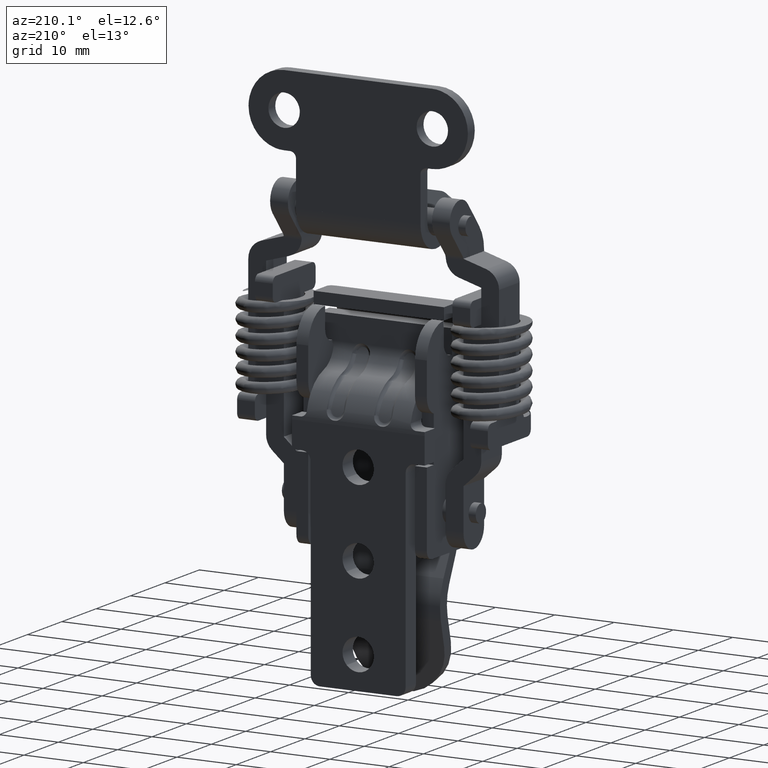
[diagram: clean part render]
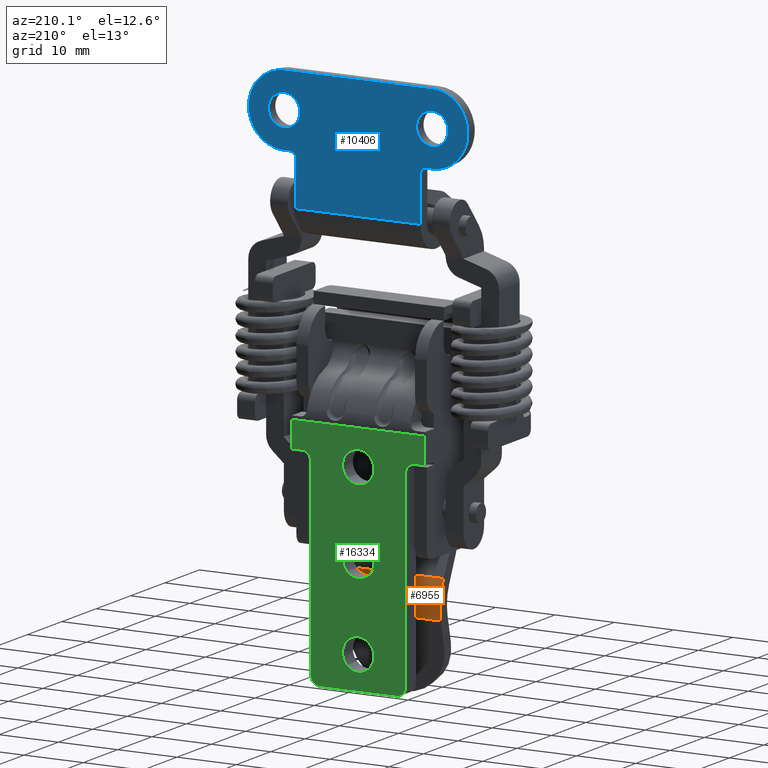
[diagram: same view with three faces highlighted in distinct colors, each labeled with its STEP entity id]
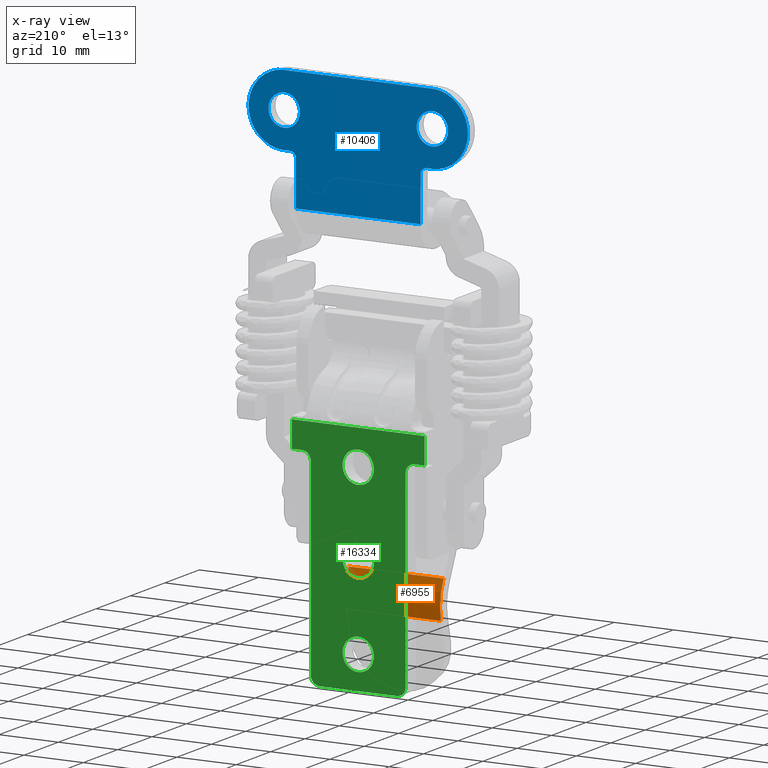
[diagram: x-ray of the same camera — body ghosted, the three highlighted faces saturated]
A machine part, auxiliary view with three faces highlighted in distinct colors.
The next image is the same camera in x-ray (body ghosted, the three faces saturated) — at least one of them is partly hidden behind the body in this view.
Their STEP definitions:

[orange] entity #6955 — the highlighted face is a freeform B-spline surface patch.
#6782=CARTESIAN_POINT('',(-5.740000047387080,8.0,-61.066000200965298));
#6783=VERTEX_POINT('',#6782);
#6817=CARTESIAN_POINT('',(-6.501592760650630,8.0,-54.873805429512302));
#6818=VERTEX_POINT('',#6817);
#6824=CARTESIAN_POINT('',(-5.740000047387080,8.0,-61.066000200965298));
#6825=CARTESIAN_POINT('',(-5.564607512669956,8.000000000000012,-60.323197919023933));
#6826=CARTESIAN_POINT('',(-5.443017026830600,7.999999999999992,-59.158759364252262));
#6827=CARTESIAN_POINT('',(-5.576390811041921,8.000000000000014,-57.668200340374867));
#6828=CARTESIAN_POINT('',(-5.861551995298243,7.999999999999981,-56.335806363307562));
#6829=CARTESIAN_POINT('',(-6.212416716020614,8.000000000000027,-55.434055913241657));
#6830=CARTESIAN_POINT('',(-6.501592760650630,8.0,-54.873805429512302));
#6831=B_SPLINE_CURVE_WITH_KNOTS('',3,(#6824,#6825,#6826,#6827,#6828,#6829,#6830),.UNSPECIFIED.,.F.,.U.,(4,1,1,1,4),(0.000000012861750,2.289614126566698,3.484170526421149,4.479665208323163,6.371079917729849),.UNSPECIFIED.);
#6832=EDGE_CURVE('',#6783,#6818,#6831,.T.);
#6850=CARTESIAN_POINT('',(-5.740000047387080,-7.999900000000001,-61.066000200965298));
#6851=VERTEX_POINT('',#6850);
#6857=CARTESIAN_POINT('',(-6.501592760650630,-7.999900000000001,-54.873805429512302));
#6858=VERTEX_POINT('',#6857);
#6859=CARTESIAN_POINT('',(-5.740000047387080,-7.999900000000001,-61.066000200965298));
#6860=CARTESIAN_POINT('',(-5.564607512669953,-7.999900000000014,-60.323197919023947));
#6861=CARTESIAN_POINT('',(-5.443017026830606,-7.999899999999995,-59.158759364252290));
#6862=CARTESIAN_POINT('',(-5.576390811041919,-7.999900000000019,-57.668200340374860));
#6863=CARTESIAN_POINT('',(-5.861551995298244,-7.999899999999978,-56.335806363307583));
#6864=CARTESIAN_POINT('',(-6.212416716020613,-7.999900000000024,-55.434055913241622));
#6865=CARTESIAN_POINT('',(-6.501592760650630,-7.999900000000001,-54.873805429512302));
#6866=B_SPLINE_CURVE_WITH_KNOTS('',3,(#6859,#6860,#6861,#6862,#6863,#6864,#6865),.UNSPECIFIED.,.F.,.U.,(4,1,1,1,4),(0.000000012861750,2.289614126566698,3.484170526421149,4.479665208323163,6.371079917729849),.UNSPECIFIED.);
#6867=EDGE_CURVE('',#6851,#6858,#6866,.T.);
#6922=CARTESIAN_POINT('',(-5.740000047387080,-7.999900000000001,-61.066000200965298));
#6923=CARTESIAN_POINT('',(-5.740000047387080,8.0,-61.066000200965298));
#6924=QUASI_UNIFORM_CURVE('',1,(#6922,#6923),.UNSPECIFIED.,.F.,.U.);
#6925=EDGE_CURVE('',#6851,#6783,#6924,.T.);
#6931=CARTESIAN_POINT('',(-5.814983309856343,-8.399897500000002,-61.361501050628178));
#6932=CARTESIAN_POINT('',(-5.814983309856343,8.409997437500001,-61.361501050628178));
#6933=CARTESIAN_POINT('',(-4.849396144398342,-8.399897500000002,-57.809688624432184));
#6934=CARTESIAN_POINT('',(-4.849396144398342,8.409997437500001,-57.809688624432184));
#6935=CARTESIAN_POINT('',(-6.649396163105486,-8.399897500000002,-54.599123250914353));
#6936=CARTESIAN_POINT('',(-6.649396163105486,8.409997437500000,-54.599123250914353));
#6944=(BOUNDED_SURFACE()B_SPLINE_SURFACE(1,2,((#6931,#6933,#6935),(#6932,#6934,#6936)),.UNSPECIFIED.,.F.,.F.,.U.)B_SPLINE_SURFACE_WITH_KNOTS((2,2),(3,3),(0.0,16.809894937500012),(0.0,7.076936884566305),.UNSPECIFIED.)GEOMETRIC_REPRESENTATION_ITEM()RATIONAL_B_SPLINE_SURFACE(((1.0,0.921603612356871,0.991410723810910),(1.0,0.921603612356871,0.991410723810910)))REPRESENTATION_ITEM('')SURFACE());
#6945=ORIENTED_EDGE('',*,*,#6832,.T.);
#6946=CARTESIAN_POINT('',(-6.501592760650630,-7.999900000000001,-54.873805429512302));
#6947=CARTESIAN_POINT('',(-6.501592760650630,8.0,-54.873805429512302));
#6948=QUASI_UNIFORM_CURVE('',1,(#6946,#6947),.UNSPECIFIED.,.F.,.U.);
#6949=EDGE_CURVE('',#6858,#6818,#6948,.T.);
#6950=ORIENTED_EDGE('',*,*,#6949,.F.);
#6951=ORIENTED_EDGE('',*,*,#6867,.F.);
#6952=ORIENTED_EDGE('',*,*,#6925,.T.);
#6953=EDGE_LOOP('',(#6945,#6950,#6951,#6952));
#6954=FACE_OUTER_BOUND('',#6953,.T.);
#6955=ADVANCED_FACE('',(#6954),#6944,.T.);

[blue] entity #10406 — the highlighted face is a freeform B-spline surface patch.
#9279=CARTESIAN_POINT('',(4.499999999999949,14.324139444820981,16.922241729165190));
#9280=VERTEX_POINT('',#9279);
#9286=CARTESIAN_POINT('',(4.499999999999949,12.500000000000000,17.649999999999999));
#9287=VERTEX_POINT('',#9286);
#9288=CARTESIAN_POINT('',(4.499999999999949,12.500000000000000,17.649999999999999));
#9289=CARTESIAN_POINT('',(4.499999999999951,12.730544245590110,17.650082412219550));
#9290=CARTESIAN_POINT('',(4.499999999999948,13.086772128391299,17.603181367212390));
#9291=CARTESIAN_POINT('',(4.499999999999954,13.722406734863389,17.383995055448949));
#9292=CARTESIAN_POINT('',(4.499999999999936,14.096258029613971,17.138863337034930));
#9293=CARTESIAN_POINT('',(4.499999999999949,14.324139444820981,16.922241729165190));
#9294=B_SPLINE_CURVE_WITH_KNOTS('',3,(#9288,#9289,#9290,#9291,#9292,#9293),.UNSPECIFIED.,.F.,.U.,(4,1,1,4),(0.000000013339782,0.691616771846324,1.068861656123942,2.011975440954431),.UNSPECIFIED.);
#9295=EDGE_CURVE('',#9287,#9280,#9294,.T.);
#9297=CARTESIAN_POINT('',(4.499999999999949,9.850000000000442,15.000001527001460));
#9298=VERTEX_POINT('',#9297);
#9299=CARTESIAN_POINT('',(4.499999999999949,9.850000000000442,15.000001527001460));
#9300=CARTESIAN_POINT('',(4.499999999999953,9.849856774500241,15.281860808402209));
#9301=CARTESIAN_POINT('',(4.499999999999942,9.937287119896761,15.823778187694691));
#9302=CARTESIAN_POINT('',(4.499999999999948,10.262419924937319,16.469804688013038));
#9303=CARTESIAN_POINT('',(4.499999999999959,10.660952612324291,16.931617415669390));
#9304=CARTESIAN_POINT('',(4.499999999999941,11.073117493497000,17.253276039472478));
#9305=CARTESIAN_POINT('',(4.499999999999953,11.676318300618391,17.557048825565939));
#9306=CARTESIAN_POINT('',(4.499999999999953,12.174754369222800,17.650247222138699));
#9307=CARTESIAN_POINT('',(4.499999999999949,12.500000000000000,17.649999999999999));
#9308=B_SPLINE_CURVE_WITH_KNOTS('',3,(#9299,#9300,#9301,#9302,#9303,#9304,#9305,#9306,#9307),.UNSPECIFIED.,.F.,.U.,(4,1,1,1,1,1,4),(0.000000052758711,0.845550204636312,1.626066688392250,2.146396051881279,2.666733828409806,3.187077940185549,4.162713861821691),.UNSPECIFIED.);
#9309=EDGE_CURVE('',#9298,#9287,#9308,.T.);
#9311=CARTESIAN_POINT('',(4.499999999999949,12.500000000000000,12.350000000000000));
#9312=VERTEX_POINT('',#9311);
#9313=CARTESIAN_POINT('',(4.499999999999949,12.500000000000000,12.350000000000000));
#9314=CARTESIAN_POINT('',(4.499999999999947,12.283204268178681,12.349971530993271));
#9315=CARTESIAN_POINT('',(4.499999999999954,11.784525009751180,12.411433976181179));
#9316=CARTESIAN_POINT('',(4.499999999999944,11.158929085598730,12.679556126838680));
#9317=CARTESIAN_POINT('',(4.499999999999952,10.660942558693201,13.068394333897130));
#9318=CARTESIAN_POINT('',(4.499999999999949,10.319428610826520,13.464268299864081));
#9319=CARTESIAN_POINT('',(4.499999999999949,10.072472555625030,13.900235696775271));
#9320=CARTESIAN_POINT('',(4.499999999999947,9.895488167455131,14.414657534886141));
#9321=CARTESIAN_POINT('',(4.499999999999964,9.849948446987238,14.783195150864319));
#9322=CARTESIAN_POINT('',(4.499999999999949,9.850000000000442,15.000001527001460));
#9323=B_SPLINE_CURVE_WITH_KNOTS('',3,(#9313,#9314,#9315,#9316,#9317,#9318,#9319,#9320,#9321,#9322),.UNSPECIFIED.,.F.,.U.,(4,1,1,1,1,1,1,4),(0.000000050669638,0.650420601499359,1.495980702797743,2.016318695154697,2.536648275005632,3.056994142481446,3.512295033035097,4.162715583151159),.UNSPECIFIED.);
#9324=EDGE_CURVE('',#9312,#9298,#9323,.T.);
#9326=CARTESIAN_POINT('',(4.499999999999949,14.523422809197790,13.288783435560690));
#9327=VERTEX_POINT('',#9326);
#9328=CARTESIAN_POINT('',(4.499999999999949,14.523422809197790,13.288783435560690));
#9329=CARTESIAN_POINT('',(4.499999999999955,14.384076084870729,13.123944732225960));
#9330=CARTESIAN_POINT('',(4.499999999999943,14.038228307134750,12.803970281019120));
#9331=CARTESIAN_POINT('',(4.499999999999956,13.351279986137699,12.444587625006090));
#9332=CARTESIAN_POINT('',(4.499999999999947,12.799807182600700,12.349811959283601));
#9333=CARTESIAN_POINT('',(4.499999999999949,12.500000000000000,12.350000000000000));
#9334=B_SPLINE_CURVE_WITH_KNOTS('',3,(#9328,#9329,#9330,#9331,#9332,#9333),.UNSPECIFIED.,.F.,.U.,(4,1,1,4),(0.000000039349580,0.647535170908107,1.402987454673651,2.302342246078862),.UNSPECIFIED.);
#9335=EDGE_CURVE('',#9327,#9312,#9334,.T.);
#9370=CARTESIAN_POINT('',(4.499999999999949,15.149999999999560,14.999998472998531));
#9371=VERTEX_POINT('',#9370);
#9372=CARTESIAN_POINT('',(4.499999999999949,15.149999999999560,14.999998472998531));
#9373=CARTESIAN_POINT('',(4.499999999999943,15.150050935541220,14.786835137579979));
#9374=CARTESIAN_POINT('',(4.499999999999956,15.105324552871251,14.418681939873300));
#9375=CARTESIAN_POINT('',(4.499999999999946,14.904179666322859,13.829580324324750));
#9376=CARTESIAN_POINT('',(4.499999999999949,14.686179716056859,13.481081100158489));
#9377=CARTESIAN_POINT('',(4.499999999999949,14.523422809197790,13.288783435560690));
#9378=B_SPLINE_CURVE_WITH_KNOTS('',3,(#9372,#9373,#9374,#9375,#9376,#9377),.UNSPECIFIED.,.F.,.U.,(4,1,1,4),(0.000000016642683,0.639490956680795,1.104559887451847,1.860321760689824),.UNSPECIFIED.);
#9379=EDGE_CURVE('',#9371,#9327,#9378,.T.);
#9381=CARTESIAN_POINT('',(4.499999999999949,14.324139444820981,16.922241729165190));
#9382=CARTESIAN_POINT('',(4.499999999999956,14.446025064108960,16.806591959475949));
#9383=CARTESIAN_POINT('',(4.499999999999946,14.689875027201740,16.526568516939172));
#9384=CARTESIAN_POINT('',(4.499999999999951,15.040499842407341,15.895876506247509));
#9385=CARTESIAN_POINT('',(4.499999999999951,15.150380337261661,15.347318719587140));
#9386=CARTESIAN_POINT('',(4.499999999999949,15.149999999999560,14.999998472998531));
#9387=B_SPLINE_CURVE_WITH_KNOTS('',3,(#9381,#9382,#9383,#9384,#9385,#9386),.UNSPECIFIED.,.F.,.U.,(4,1,1,4),(0.000000031613396,0.504069558816945,1.108935708205882,2.150697639716545),.UNSPECIFIED.);
#9388=EDGE_CURVE('',#9280,#9371,#9387,.T.);
#9484=CARTESIAN_POINT('',(4.499999999999949,-10.675860555179019,16.922241729165190));
#9485=VERTEX_POINT('',#9484);
#9491=CARTESIAN_POINT('',(4.499999999999949,-12.500000000000000,17.649999999999999));
#9492=VERTEX_POINT('',#9491);
#9493=CARTESIAN_POINT('',(4.499999999999949,-12.500000000000000,17.649999999999999));
#9494=CARTESIAN_POINT('',(4.499999999999949,-12.185587368637499,17.650270843554740));
#9495=CARTESIAN_POINT('',(4.499999999999945,-11.745672798072279,17.570731254370109));
#9496=CARTESIAN_POINT('',(4.499999999999953,-11.133710363913901,17.292199020869599));
#9497=CARTESIAN_POINT('',(4.499999999999944,-10.843042950550940,17.080984972430809));
#9498=CARTESIAN_POINT('',(4.499999999999949,-10.675860555179019,16.922241729165190));
#9499=B_SPLINE_CURVE_WITH_KNOTS('',3,(#9493,#9494,#9495,#9496,#9497,#9498),.UNSPECIFIED.,.F.,.U.,(4,1,1,4),(0.000000013339529,0.943113798217816,1.320358682467496,2.011975440954436),.UNSPECIFIED.);
#9500=EDGE_CURVE('',#9492,#9485,#9499,.T.);
#9502=CARTESIAN_POINT('',(4.499999999999949,-15.149999999999560,15.000001527001460));
#9503=VERTEX_POINT('',#9502);
#9504=CARTESIAN_POINT('',(4.499999999999949,-15.149999999999560,15.000001527001460));
#9505=CARTESIAN_POINT('',(4.499999999999952,-15.150242182698021,15.325244710180250));
#9506=CARTESIAN_POINT('',(4.499999999999950,-15.057063380212950,15.823688939465990));
#9507=CARTESIAN_POINT('',(4.499999999999955,-14.772851624236960,16.387960573087710));
#9508=CARTESIAN_POINT('',(4.499999999999943,-14.487972849399069,16.772104555903532));
#9509=CARTESIAN_POINT('',(4.499999999999966,-14.140881202316370,17.102595693098088));
#9510=CARTESIAN_POINT('',(4.499999999999912,-13.735959773087350,17.358975209828660));
#9511=CARTESIAN_POINT('',(4.500000000000033,-13.193683212676239,17.583654397219309));
#9512=CARTESIAN_POINT('',(4.499999999999867,-12.781867570068540,17.650149377485910));
#9513=CARTESIAN_POINT('',(4.499999999999949,-12.500000000000000,17.649999999999999));
#9514=B_SPLINE_CURVE_WITH_KNOTS('',3,(#9504,#9505,#9506,#9507,#9508,#9509,#9510,#9511,#9512,#9513),.UNSPECIFIED.,.F.,.U.,(4,1,1,1,1,1,1,4),(0.000000052760421,0.975635974217337,1.495980084832347,1.886236566518915,2.406561453332977,2.926907108806309,3.317163709479213,4.162713861821660),.UNSPECIFIED.);
#9515=EDGE_CURVE('',#9503,#9492,#9514,.T.);
#9517=CARTESIAN_POINT('',(4.499999999999949,-12.500000000000000,12.350000000000000));
#9518=VERTEX_POINT('',#9517);
#9519=CARTESIAN_POINT('',(4.499999999999949,-12.500000000000000,12.350000000000000));
#9520=CARTESIAN_POINT('',(4.499999999999943,-12.781866748688300,12.349849243806780));
#9521=CARTESIAN_POINT('',(4.499999999999958,-13.193684462491230,12.416347488250230));
#9522=CARTESIAN_POINT('',(4.499999999999950,-13.735956961492469,12.641028423212029));
#9523=CARTESIAN_POINT('',(4.499999999999941,-14.177705543688230,12.920700987595520));
#9524=CARTESIAN_POINT('',(4.499999999999946,-14.610213625428120,13.353168238664500));
#9525=CARTESIAN_POINT('',(4.499999999999975,-14.935876593788899,13.896542461123589));
#9526=CARTESIAN_POINT('',(4.499999999999929,-15.113697508645270,14.457998758892330));
#9527=CARTESIAN_POINT('',(4.499999999999965,-15.150020344034299,14.826561911584420));
#9528=CARTESIAN_POINT('',(4.499999999999949,-15.149999999999560,15.000001527001460));
#9529=B_SPLINE_CURVE_WITH_KNOTS('',3,(#9519,#9520,#9521,#9522,#9523,#9524,#9525,#9526,#9527,#9528),.UNSPECIFIED.,.F.,.U.,(4,1,1,1,1,1,1,4),(0.000000050665429,0.845550552797639,1.235807314996755,1.756153185548479,2.406562450377335,3.056994142480738,3.642381858811953,4.162715583151186),.UNSPECIFIED.);
#9530=EDGE_CURVE('',#9518,#9503,#9529,.T.);
#9532=CARTESIAN_POINT('',(4.499999999999949,-10.476577190802210,13.288783435560690));
#9533=VERTEX_POINT('',#9532);
#9534=CARTESIAN_POINT('',(4.499999999999949,-10.476577190802210,13.288783435560690));
#9535=CARTESIAN_POINT('',(4.499999999999954,-10.693180737290939,13.032168189253760));
#9536=CARTESIAN_POINT('',(4.499999999999952,-11.130611329349991,12.680029595630140));
#9537=CARTESIAN_POINT('',(4.499999999999938,-11.852495337628749,12.403026016323089));
#9538=CARTESIAN_POINT('',(4.499999999999955,-12.284154371293919,12.349951755727499));
#9539=CARTESIAN_POINT('',(4.499999999999949,-12.500000000000000,12.350000000000000));
#9540=B_SPLINE_CURVE_WITH_KNOTS('',3,(#9534,#9535,#9536,#9537,#9538,#9539),.UNSPECIFIED.,.F.,.U.,(4,1,1,4),(0.000000039349503,1.007286610659101,1.654807114531769,2.302342246078863),.UNSPECIFIED.);
#9541=EDGE_CURVE('',#9533,#9518,#9540,.T.);
#9577=CARTESIAN_POINT('',(4.499999999999949,-9.850000000000442,14.999998472998540));
#9578=VERTEX_POINT('',#9577);
#9579=CARTESIAN_POINT('',(4.499999999999949,-9.850000000000442,14.999998472998540));
#9580=CARTESIAN_POINT('',(4.499999999999957,-9.849899632461554,14.748071513971540));
#9581=CARTESIAN_POINT('',(4.499999999999926,-9.916818799857486,14.283054218617769));
#9582=CARTESIAN_POINT('',(4.499999999999974,-10.163431320416199,13.709180647488630));
#9583=CARTESIAN_POINT('',(4.499999999999930,-10.376466459853720,13.407145935694819));
#9584=CARTESIAN_POINT('',(4.499999999999949,-10.476577190802210,13.288783435560690));
#9585=B_SPLINE_CURVE_WITH_KNOTS('',3,(#9579,#9580,#9581,#9582,#9583,#9584),.UNSPECIFIED.,.F.,.U.,(4,1,1,4),(0.000000016642837,0.755761889868861,1.395241324652603,1.860321760689831),.UNSPECIFIED.);
#9586=EDGE_CURVE('',#9578,#9533,#9585,.T.);
#9588=CARTESIAN_POINT('',(4.499999999999949,-10.675860555179019,16.922241729165190));
#9589=CARTESIAN_POINT('',(4.499999999999944,-10.464468057604970,16.721883385976430));
#9590=CARTESIAN_POINT('',(4.499999999999982,-10.143129390144169,16.295820478909601));
#9591=CARTESIAN_POINT('',(4.499999999999912,-9.896027643368337,15.616084846369560));
#9592=CARTESIAN_POINT('',(4.499999999999968,-9.849979425572570,15.190421454337461));
#9593=CARTESIAN_POINT('',(4.499999999999949,-9.850000000000442,14.999998472998540));
#9594=B_SPLINE_CURVE_WITH_KNOTS('',3,(#9588,#9589,#9590,#9591,#9592,#9593),.UNSPECIFIED.,.F.,.U.,(4,1,1,4),(0.000000031614010,0.873728300629409,1.579418362868784,2.150697639716528),.UNSPECIFIED.);
#9595=EDGE_CURVE('',#9485,#9578,#9594,.T.);
#9624=CARTESIAN_POINT('',(4.499999999999949,-11.500000000000000,9.0));
#9625=VERTEX_POINT('',#9624);
#9626=CARTESIAN_POINT('',(4.499999999999949,-10.500000000000000,8.0));
#9627=VERTEX_POINT('',#9626);
#9628=CARTESIAN_POINT('',(4.499999999999949,-11.500000000000000,9.0));
#9629=CARTESIAN_POINT('',(4.499999999999959,-11.360883469817439,9.000165235989554));
#9630=CARTESIAN_POINT('',(4.499999999999942,-11.140157732363869,8.953142003217000));
#9631=CARTESIAN_POINT('',(4.499999999999957,-10.857317738476389,8.783601301142337));
#9632=CARTESIAN_POINT('',(4.499999999999953,-10.676883171024880,8.589354802701992));
#9633=CARTESIAN_POINT('',(4.499999999999936,-10.536606293222640,8.319002202742553));
#9634=CARTESIAN_POINT('',(4.499999999999960,-10.499906737643821,8.122731766846259));
#9635=CARTESIAN_POINT('',(4.499999999999949,-10.500000000000000,8.0));
#9636=B_SPLINE_CURVE_WITH_KNOTS('',3,(#9628,#9629,#9630,#9631,#9632,#9633,#9634,#9635),.UNSPECIFIED.,.F.,.U.,(4,1,1,1,1,4),(0.000000217521896,0.417255448876872,0.662710982423957,0.981768863712666,1.202673212299097,1.570835744366259),.UNSPECIFIED.);
#9637=EDGE_CURVE('',#9625,#9627,#9636,.T.);
#9681=CARTESIAN_POINT('',(4.499999999999949,10.500000000000000,8.0));
#9682=VERTEX_POINT('',#9681);
#9683=CARTESIAN_POINT('',(4.499999999999949,11.500000000000000,9.0));
#9684=VERTEX_POINT('',#9683);
#9685=CARTESIAN_POINT('',(4.499999999999949,10.500000000000000,8.0));
#9686=CARTESIAN_POINT('',(4.499999999999949,10.499885071363931,8.122737199496450));
#9687=CARTESIAN_POINT('',(4.499999999999954,10.536627932696449,8.318995729046645));
#9688=CARTESIAN_POINT('',(4.499999999999962,10.676881922767089,8.589347594859412));
#9689=CARTESIAN_POINT('',(4.499999999999910,10.879840010429881,8.807952125593573));
#9690=CARTESIAN_POINT('',(4.500000000000025,11.172772055172119,8.964445593157125));
#9691=CARTESIAN_POINT('',(4.499999999999883,11.393639405862420,9.000053192101406));
#9692=CARTESIAN_POINT('',(4.499999999999949,11.500000000000000,9.0));
#9693=B_SPLINE_CURVE_WITH_KNOTS('',3,(#9685,#9686,#9687,#9688,#9689,#9690,#9691,#9692),.UNSPECIFIED.,.F.,.U.,(4,1,1,1,1,4),(0.000000217521302,0.368162749588600,0.589067098175157,0.908124979463977,1.251763102711212,1.570835744366268),.UNSPECIFIED.);
#9694=EDGE_CURVE('',#9682,#9684,#9693,.T.);
#9862=CARTESIAN_POINT('',(4.500000000000000,-12.500000000000000,21.0));
#9863=VERTEX_POINT('',#9862);
#9901=CARTESIAN_POINT('',(4.499999999999949,-12.500000000000000,9.0));
#9902=VERTEX_POINT('',#9901);
#9908=CARTESIAN_POINT('',(4.499999999999999,-18.499999999999918,14.999998981942390));
#9909=VERTEX_POINT('',#9908);
#9910=CARTESIAN_POINT('',(4.499999999999999,-18.499999999999918,14.999998981942390));
#9911=CARTESIAN_POINT('',(4.500000000000000,-18.500172926431809,14.460019017123271));
#9912=CARTESIAN_POINT('',(4.499999999999987,-18.389907940664020,13.650183883916799));
#9913=CARTESIAN_POINT('',(4.500000000000012,-18.015142242665451,12.582448774855701));
#9914=CARTESIAN_POINT('',(4.499999999999908,-17.499013177770902,11.601989519380041));
#9915=CARTESIAN_POINT('',(4.500000000000063,-16.723943677469549,10.669406990735141));
#9916=CARTESIAN_POINT('',(4.499999999999892,-15.669617533777121,9.857008266756095));
#9917=CARTESIAN_POINT('',(4.500000000000045,-14.604421528841300,9.337091623072752));
#9918=CARTESIAN_POINT('',(4.499999999999842,-13.506283313033830,9.054940158124675));
#9919=CARTESIAN_POINT('',(4.500000000000107,-12.819066319360241,8.999979488749238));
#9920=CARTESIAN_POINT('',(4.499999999999949,-12.500000000000000,9.0));
#9921=B_SPLINE_CURVE_WITH_KNOTS('',3,(#9910,#9911,#9912,#9913,#9914,#9915,#9916,#9917,#9918,#9919,#9920),.UNSPECIFIED.,.F.,.U.,(4,1,1,1,1,1,1,1,4),(0.000000082117488,1.619881983833523,2.429842197447269,3.387059662476491,4.933282649190297,6.037779159362161,7.363158455707434,8.467632969280656,9.424836523456092),.UNSPECIFIED.);
#9922=EDGE_CURVE('',#9909,#9902,#9921,.T.);
#9924=CARTESIAN_POINT('',(4.500000000000000,-12.500000000000000,21.0));
#9925=CARTESIAN_POINT('',(4.500000000000000,-12.843605516603191,21.000028148097790));
#9926=CARTESIAN_POINT('',(4.500000000000021,-13.530824321419020,20.940813573476682));
#9927=CARTESIAN_POINT('',(4.499999999999977,-14.412192218039600,20.708513049861050));
#9928=CARTESIAN_POINT('',(4.500000000000024,-15.227666313752289,20.364841843987641));
#9929=CARTESIAN_POINT('',(4.500000000000033,-16.054342056080600,19.876285368786039));
#9930=CARTESIAN_POINT('',(4.499999999999921,-16.797802150623340,19.226972536125128));
#9931=CARTESIAN_POINT('',(4.500000000000117,-17.421761278580469,18.466606461641440));
#9932=CARTESIAN_POINT('',(4.499999999999981,-17.843758757264521,17.772257120920600));
#9933=CARTESIAN_POINT('',(4.499999999999985,-18.211936490568569,16.913416820527701));
#9934=CARTESIAN_POINT('',(4.500000000000025,-18.445068619296030,16.006287205907650));
#9935=CARTESIAN_POINT('',(4.499999999999997,-18.500020066252699,15.319064723237300));
#9936=CARTESIAN_POINT('',(4.499999999999999,-18.499999999999918,14.999998981942390));
#9937=B_SPLINE_CURVE_WITH_KNOTS('',3,(#9924,#9925,#9926,#9927,#9928,#9929,#9930,#9931,#9932,#9933,#9934,#9935,#9936),.UNSPECIFIED.,.F.,.U.,(4,1,1,1,1,1,1,1,1,1,4),(0.000000081763515,1.030820088440020,2.061684213137982,2.724370197082681,3.681581302913690,4.933283250428634,5.669622573229921,6.626837814391047,7.363159352452369,8.467634000760539,9.424837671051501),.UNSPECIFIED.);
#9938=EDGE_CURVE('',#9863,#9909,#9937,.T.);
#9961=CARTESIAN_POINT('',(4.500000000000000,18.499999999999918,15.000001018057601));
#9962=VERTEX_POINT('',#9961);
#9963=CARTESIAN_POINT('',(4.500000000000000,12.500000000000000,21.0));
#9964=VERTEX_POINT('',#9963);
#9965=CARTESIAN_POINT('',(4.500000000000000,18.499999999999918,15.000001018057601));
#9966=CARTESIAN_POINT('',(4.500000000000008,18.500071630493881,15.441785100800660));
#9967=CARTESIAN_POINT('',(4.499999999999998,18.399282014032089,16.349887270409251));
#9968=CARTESIAN_POINT('',(4.500000000000020,17.990213782303950,17.515729011282570));
#9969=CARTESIAN_POINT('',(4.499999999999989,17.376272082027061,18.554335435756979));
#9970=CARTESIAN_POINT('',(4.500000000000061,16.678272399788209,19.353555152928191));
#9971=CARTESIAN_POINT('',(4.499999999999971,15.712416240675500,20.116956668475620));
#9972=CARTESIAN_POINT('',(4.500000000000085,14.652194130601551,20.650679204241740));
#9973=CARTESIAN_POINT('',(4.499999999999881,13.506279173605069,20.945052889192318));
#9974=CARTESIAN_POINT('',(4.500000000000158,12.819066155612569,21.000020381958301));
#9975=CARTESIAN_POINT('',(4.500000000000000,12.500000000000000,21.0));
#9976=B_SPLINE_CURVE_WITH_KNOTS('',3,(#9965,#9966,#9967,#9968,#9969,#9970,#9971,#9972,#9973,#9974,#9975),.UNSPECIFIED.,.F.,.U.,(4,1,1,1,1,1,1,1,4),(0.000000082112996,1.325350916842446,2.724369865543157,3.681580854351974,4.933282649189467,5.890504971896557,7.363158455707513,8.467632969280720,9.424836523456158),.UNSPECIFIED.);
#9977=EDGE_CURVE('',#9962,#9964,#9976,.T.);
#9979=CARTESIAN_POINT('',(4.499999999999949,12.500000000000000,9.0));
#9980=VERTEX_POINT('',#9979);
#9981=CARTESIAN_POINT('',(4.499999999999949,12.500000000000000,9.0));
#9982=CARTESIAN_POINT('',(4.499999999999953,12.843605553581900,8.999974794222688));
#9983=CARTESIAN_POINT('',(4.499999999999955,13.530822923906610,9.059184238952970));
#9984=CARTESIAN_POINT('',(4.499999999999953,14.459838675825390,9.304042127746842));
#9985=CARTESIAN_POINT('',(4.499999999999949,15.361852663711540,9.697272685354756));
#9986=CARTESIAN_POINT('',(4.500000000000034,16.170806208416131,10.216500222061200));
#9987=CARTESIAN_POINT('',(4.499999999999885,16.950885076424779,10.932322924459520));
#9988=CARTESIAN_POINT('',(4.500000000000089,17.673119758131730,11.869400849721231));
#9989=CARTESIAN_POINT('',(4.499999999999857,18.318159598897729,13.233022291588190));
#9990=CARTESIAN_POINT('',(4.500000000000037,18.500323804388000,14.361833405587181));
#9991=CARTESIAN_POINT('',(4.500000000000000,18.499999999999918,15.000001018057601));
#9992=B_SPLINE_CURVE_WITH_KNOTS('',3,(#9981,#9982,#9983,#9984,#9985,#9986,#9987,#9988,#9989,#9990,#9991),.UNSPECIFIED.,.F.,.U.,(4,1,1,1,1,1,1,1,4),(0.000000081763176,1.030820088439770,2.061684213137789,2.871639251703165,3.976111703024825,4.933283250428821,6.037779893853490,7.510418758599437,9.424837671051492),.UNSPECIFIED.);
#9993=EDGE_CURVE('',#9980,#9962,#9992,.T.);
#10048=CARTESIAN_POINT('',(4.499999999999949,12.500000000000000,9.0));
#10049=CARTESIAN_POINT('',(4.499999999999949,11.500000000000000,9.0));
#10050=QUASI_UNIFORM_CURVE('',1,(#10048,#10049),.UNSPECIFIED.,.F.,.U.);
#10051=EDGE_CURVE('',#9980,#9684,#10050,.T.);
#10076=CARTESIAN_POINT('',(4.499999999999949,10.500000000000000,0.499999999999801));
#10077=VERTEX_POINT('',#10076);
#10078=CARTESIAN_POINT('',(4.499999999999949,10.500000000000000,8.0));
#10079=CARTESIAN_POINT('',(4.499999999999949,10.500000000000000,0.499999999999801));
#10080=QUASI_UNIFORM_CURVE('',1,(#10078,#10079),.UNSPECIFIED.,.F.,.U.);
#10081=EDGE_CURVE('',#9682,#10077,#10080,.T.);
#10155=CARTESIAN_POINT('',(4.499999999999949,-11.500000000000000,9.0));
#10156=CARTESIAN_POINT('',(4.499999999999949,-12.500000000000000,9.0));
#10157=QUASI_UNIFORM_CURVE('',1,(#10155,#10156),.UNSPECIFIED.,.F.,.U.);
#10158=EDGE_CURVE('',#9625,#9902,#10157,.T.);
#10169=CARTESIAN_POINT('',(4.499999999999949,-10.500000000000000,0.499999999999801));
#10170=VERTEX_POINT('',#10169);
#10171=CARTESIAN_POINT('',(4.499999999999949,-10.500000000000000,0.499999999999801));
#10172=CARTESIAN_POINT('',(4.499999999999949,-10.500000000000000,8.0));
#10173=QUASI_UNIFORM_CURVE('',1,(#10171,#10172),.UNSPECIFIED.,.F.,.U.);
#10174=EDGE_CURVE('',#10170,#9627,#10173,.T.);
#10249=CARTESIAN_POINT('',(4.500000000000000,-12.500000000000000,21.0));
#10250=CARTESIAN_POINT('',(4.500000000000000,12.500000000000000,21.0));
#10251=QUASI_UNIFORM_CURVE('',1,(#10249,#10250),.UNSPECIFIED.,.F.,.U.);
#10252=EDGE_CURVE('',#9863,#9964,#10251,.T.);
#10367=CARTESIAN_POINT('',(4.500000000000000,-20.348149928286730,-0.523974960267232));
#10368=CARTESIAN_POINT('',(4.500000000000000,-20.348149928286730,22.023975510119890));
#10369=CARTESIAN_POINT('',(4.500000000000000,20.348150920704072,-0.523974960267232));
#10370=CARTESIAN_POINT('',(4.500000000000000,20.348150920704072,22.023975510119890));
#10371=B_SPLINE_SURFACE_WITH_KNOTS('',1,1,((#10367,#10369),(#10368,#10370)),.UNSPECIFIED.,.F.,.F.,.U.,(2,2),(2,2),(0.0,22.547950470387121),(0.0,40.696300848990788),.UNSPECIFIED.);
#10372=ORIENTED_EDGE('',*,*,#10051,.F.);
#10373=ORIENTED_EDGE('',*,*,#9993,.T.);
#10374=ORIENTED_EDGE('',*,*,#9977,.T.);
#10375=ORIENTED_EDGE('',*,*,#10252,.F.);
#10376=ORIENTED_EDGE('',*,*,#9938,.T.);
#10377=ORIENTED_EDGE('',*,*,#9922,.T.);
#10378=ORIENTED_EDGE('',*,*,#10158,.F.);
#10379=ORIENTED_EDGE('',*,*,#9637,.T.);
#10380=ORIENTED_EDGE('',*,*,#10174,.F.);
#10381=CARTESIAN_POINT('',(4.499999999999949,-10.500000000000000,0.499999999999801));
#10382=CARTESIAN_POINT('',(4.499999999999949,10.500000000000000,0.499999999999801));
#10383=QUASI_UNIFORM_CURVE('',1,(#10381,#10382),.UNSPECIFIED.,.F.,.U.);
#10384=EDGE_CURVE('',#10170,#10077,#10383,.T.);
#10385=ORIENTED_EDGE('',*,*,#10384,.T.);
#10386=ORIENTED_EDGE('',*,*,#10081,.F.);
#10387=ORIENTED_EDGE('',*,*,#9694,.T.);
#10388=EDGE_LOOP('',(#10372,#10373,#10374,#10375,#10376,#10377,#10378,#10379,#10380,#10385,#10386,#10387));
#10389=FACE_OUTER_BOUND('',#10388,.T.);
#10390=ORIENTED_EDGE('',*,*,#9530,.T.);
#10391=ORIENTED_EDGE('',*,*,#9515,.T.);
#10392=ORIENTED_EDGE('',*,*,#9500,.T.);
#10393=ORIENTED_EDGE('',*,*,#9595,.T.);
#10394=ORIENTED_EDGE('',*,*,#9586,.T.);
#10395=ORIENTED_EDGE('',*,*,#9541,.T.);
#10396=EDGE_LOOP('',(#10390,#10391,#10392,#10393,#10394,#10395));
#10397=FACE_BOUND('',#10396,.T.);
#10398=ORIENTED_EDGE('',*,*,#9324,.T.);
#10399=ORIENTED_EDGE('',*,*,#9309,.T.);
#10400=ORIENTED_EDGE('',*,*,#9295,.T.);
#10401=ORIENTED_EDGE('',*,*,#9388,.T.);
#10402=ORIENTED_EDGE('',*,*,#9379,.T.);
#10403=ORIENTED_EDGE('',*,*,#9335,.T.);
#10404=EDGE_LOOP('',(#10398,#10399,#10400,#10401,#10402,#10403));
#10405=FACE_BOUND('',#10404,.T.);
#10406=ADVANCED_FACE('',(#10389,#10397,#10405),#10371,.F.);

[green] entity #16334 — the highlighted face is a freeform B-spline surface patch.
#10519=CARTESIAN_POINT('',(4.500000000000060,0.0,-34.350000000000001));
#10520=VERTEX_POINT('',#10519);
#10521=CARTESIAN_POINT('',(4.499999999990816,-1.899124850363894,-35.151805535069293));
#10522=VERTEX_POINT('',#10521);
#10523=CARTESIAN_POINT('',(4.500000000000060,0.0,-34.350000000000001));
#10524=CARTESIAN_POINT('',(4.499999999998651,-0.286748860202249,-34.349825383367303));
#10525=CARTESIAN_POINT('',(4.499999999996414,-0.749783981254285,-34.425949082912943));
#10526=CARTESIAN_POINT('',(4.499999999993282,-1.396148760654602,-34.718079718497592));
#10527=CARTESIAN_POINT('',(4.499999999991608,-1.729973020186507,-34.977875846885333));
#10528=CARTESIAN_POINT('',(4.499999999990816,-1.899124850363894,-35.151805535069293));
#10529=B_SPLINE_CURVE_WITH_KNOTS('',3,(#10523,#10524,#10525,#10526,#10527,#10528),.UNSPECIFIED.,.F.,.U.,(4,1,1,4),(0.000000029235030,0.860173918314098,1.389494032231350,2.117333064243859),.UNSPECIFIED.);
#10530=EDGE_CURVE('',#10520,#10522,#10529,.T.);
#10592=CARTESIAN_POINT('',(4.500000000000013,-1.953785225732785,-38.790314304049929));
#10593=VERTEX_POINT('',#10592);
#10599=CARTESIAN_POINT('',(4.500000000000060,0.0,-39.649999999999999));
#10600=VERTEX_POINT('',#10599);
#10601=CARTESIAN_POINT('',(4.500000000000013,-1.953785225732785,-38.790314304049929));
#10602=CARTESIAN_POINT('',(4.500000000000020,-1.822387865639166,-38.933743668235088));
#10603=CARTESIAN_POINT('',(4.500000000000033,-1.493193107889120,-39.221849833644917));
#10604=CARTESIAN_POINT('',(4.500000000000024,-0.835213222487361,-39.558487376035977));
#10605=CARTESIAN_POINT('',(4.500000000000067,-0.297517338012279,-39.650176073243117));
#10606=CARTESIAN_POINT('',(4.500000000000060,0.0,-39.649999999999999));
#10607=B_SPLINE_CURVE_WITH_KNOTS('',3,(#10601,#10602,#10603,#10604,#10605,#10606),.UNSPECIFIED.,.F.,.U.,(4,1,1,4),(0.000000035138055,0.583564767906828,1.304430447124629,2.196948716635029),.UNSPECIFIED.);
#10608=EDGE_CURVE('',#10593,#10600,#10607,.T.);
#10610=CARTESIAN_POINT('',(4.500000000000060,2.649999999999560,-36.999998472998527));
#10611=VERTEX_POINT('',#10610);
#10612=CARTESIAN_POINT('',(4.500000000000060,0.0,-39.649999999999999));
#10613=CARTESIAN_POINT('',(4.500000000000057,0.281867380076368,-39.650150430009752));
#10614=CARTESIAN_POINT('',(4.500000000000065,0.693683708769814,-39.583651996883383));
#10615=CARTESIAN_POINT('',(4.500000000000060,1.235960086448609,-39.358974179260720));
#10616=CARTESIAN_POINT('',(4.500000000000066,1.640867592413556,-39.102584782560022));
#10617=CARTESIAN_POINT('',(4.500000000000062,2.082718802559389,-38.682023424101999));
#10618=CARTESIAN_POINT('',(4.500000000000044,2.422756265359303,-38.145086154218752));
#10619=CARTESIAN_POINT('',(4.500000000000083,2.613688440773167,-37.541994534085930));
#10620=CARTESIAN_POINT('',(4.500000000000035,2.650020402280453,-37.173438758365357));
#10621=CARTESIAN_POINT('',(4.500000000000060,2.649999999999560,-36.999998472998527));
#10622=B_SPLINE_CURVE_WITH_KNOTS('',3,(#10612,#10613,#10614,#10615,#10616,#10617,#10618,#10619,#10620,#10621),.UNSPECIFIED.,.F.,.U.,(4,1,1,1,1,1,1,4),(0.000000050669871,0.845550552800965,1.235807314999608,1.756153185550772,2.276478289004431,3.056994142481616,3.642381858812262,4.162715583151171),.UNSPECIFIED.);
#10623=EDGE_CURVE('',#10600,#10611,#10622,.T.);
#10625=CARTESIAN_POINT('',(4.500000000000060,2.649999999999560,-36.999998472998527));
#10626=CARTESIAN_POINT('',(4.500000000000062,2.650051735128491,-36.783192314694162));
#10627=CARTESIAN_POINT('',(4.500000000000057,2.604511151475703,-36.414654890960023));
#10628=CARTESIAN_POINT('',(4.500000000000069,2.427521617557826,-35.900238808138830));
#10629=CARTESIAN_POINT('',(4.500000000000050,2.137670746992582,-35.388402207493748));
#10630=CARTESIAN_POINT('',(4.500000000000073,1.714579343833865,-34.943947285983057));
#10631=CARTESIAN_POINT('',(4.500000000000052,1.235943896814602,-34.641034847855948));
#10632=CARTESIAN_POINT('',(4.500000000000077,0.693680516661968,-34.416369445906099));
#10633=CARTESIAN_POINT('',(4.500000000000046,0.281870131774153,-34.349824495126470));
#10634=CARTESIAN_POINT('',(4.500000000000060,0.0,-34.350000000000001));
#10635=B_SPLINE_CURVE_WITH_KNOTS('',3,(#10625,#10626,#10627,#10628,#10629,#10630,#10631,#10632,#10633,#10634),.UNSPECIFIED.,.F.,.U.,(4,1,1,1,1,1,1,4),(0.000000052759012,0.650420334015461,1.105721035757569,1.626066688393534,2.406561453333265,2.926907108806526,3.317163709479414,4.162713861821684),.UNSPECIFIED.);
#10636=EDGE_CURVE('',#10611,#10520,#10635,.T.);
#10655=CARTESIAN_POINT('',(4.500000000000060,-2.649999999999560,-37.000001527001459));
#10656=VERTEX_POINT('',#10655);
#10657=CARTESIAN_POINT('',(4.499999999990816,-1.899124850363894,-35.151805535069293));
#10658=CARTESIAN_POINT('',(4.499999999991958,-2.122244121498107,-35.380666675286633));
#10659=CARTESIAN_POINT('',(4.499999999994038,-2.399317062203469,-35.794493260247812));
#10660=CARTESIAN_POINT('',(4.499999999997283,-2.610503476425445,-36.446087989383088));
#10661=CARTESIAN_POINT('',(4.499999999999111,-2.650035786708021,-36.808250897145903));
#10662=CARTESIAN_POINT('',(4.500000000000060,-2.649999999999560,-37.000001527001459));
#10663=B_SPLINE_CURVE_WITH_KNOTS('',3,(#10657,#10658,#10659,#10660,#10661,#10662),.UNSPECIFIED.,.F.,.U.,(4,1,1,4),(0.000000014551051,0.958754278217935,1.470089352461481,2.045341741733298),.UNSPECIFIED.);
#10664=EDGE_CURVE('',#10522,#10656,#10663,.T.);
#10666=CARTESIAN_POINT('',(4.500000000000060,-2.649999999999560,-37.000001527001459));
#10667=CARTESIAN_POINT('',(4.500000000000051,-2.650057573532767,-37.225243091391327));
#10668=CARTESIAN_POINT('',(4.500000000000054,-2.594860664908262,-37.655203170674973));
#10669=CARTESIAN_POINT('',(4.500000000000014,-2.355768307296625,-38.269990459845260));
#10670=CARTESIAN_POINT('',(4.500000000000032,-2.106002611204831,-38.624290448857678));
#10671=CARTESIAN_POINT('',(4.500000000000013,-1.953785225732785,-38.790314304049929));
#10672=B_SPLINE_CURVE_WITH_KNOTS('',3,(#10666,#10667,#10668,#10669,#10670,#10671),.UNSPECIFIED.,.F.,.U.,(4,1,1,4),(0.000000021836761,0.675722452046648,1.289997248495458,1.965719678743297),.UNSPECIFIED.);
#10673=EDGE_CURVE('',#10656,#10593,#10672,.T.);
#10726=CARTESIAN_POINT('',(4.500000000000060,0.0,-48.349999999999987));
#10727=VERTEX_POINT('',#10726);
#10728=CARTESIAN_POINT('',(4.499999999990816,-1.899124850363898,-49.151805535069293));
#10729=VERTEX_POINT('',#10728);
#10730=CARTESIAN_POINT('',(4.500000000000060,0.0,-48.349999999999987));
#10731=CARTESIAN_POINT('',(4.499999999998983,-0.220550698080082,-48.349969481338533));
#10732=CARTESIAN_POINT('',(4.499999999996585,-0.716823304964349,-48.412210223966532));
#10733=CARTESIAN_POINT('',(4.499999999993340,-1.373195923315893,-48.694153912842083));
#10734=CARTESIAN_POINT('',(4.499999999991567,-1.753011321951983,-49.001641143345147));
#10735=CARTESIAN_POINT('',(4.499999999990816,-1.899124850363898,-49.151805535069293));
#10736=B_SPLINE_CURVE_WITH_KNOTS('',3,(#10730,#10731,#10732,#10733,#10734,#10735),.UNSPECIFIED.,.F.,.U.,(4,1,1,4),(0.000000029232679,0.661670972531785,1.488748503564763,2.117333064243836),.UNSPECIFIED.);
#10737=EDGE_CURVE('',#10727,#10729,#10736,.T.);
#10797=CARTESIAN_POINT('',(4.500000000000013,-1.953785225732783,-52.790314304049929));
#10798=VERTEX_POINT('',#10797);
#10804=CARTESIAN_POINT('',(4.500000000000060,0.0,-53.649999999999999));
#10805=VERTEX_POINT('',#10804);
#10806=CARTESIAN_POINT('',(4.500000000000013,-1.953785225732783,-52.790314304049929));
#10807=CARTESIAN_POINT('',(4.500000000000016,-1.822393397113107,-52.933756324821417));
#10808=CARTESIAN_POINT('',(4.500000000000031,-1.536488746162869,-53.183896115622083));
#10809=CARTESIAN_POINT('',(4.500000000000028,-1.083487751881787,-53.434446145282259));
#10810=CARTESIAN_POINT('',(4.500000000000051,-0.572099057951760,-53.606084645877623));
#10811=CARTESIAN_POINT('',(4.500000000000050,-0.217411933106620,-53.650061089060117));
#10812=CARTESIAN_POINT('',(4.500000000000060,0.0,-53.649999999999999));
#10813=B_SPLINE_CURVE_WITH_KNOTS('',3,(#10806,#10807,#10808,#10809,#10810,#10811,#10812),.UNSPECIFIED.,.F.,.U.,(4,1,1,1,4),(0.000000035137485,0.583564767906726,1.132782756672863,1.544728105557603,2.196948716635034),.UNSPECIFIED.);
#10814=EDGE_CURVE('',#10798,#10805,#10813,.T.);
#10816=CARTESIAN_POINT('',(4.500000000000060,2.649999999999560,-50.999998472998541));
#10817=VERTEX_POINT('',#10816);
#10818=CARTESIAN_POINT('',(4.500000000000060,0.0,-53.649999999999999));
#10819=CARTESIAN_POINT('',(4.500000000000062,0.238485637452630,-53.650072087498160));
#10820=CARTESIAN_POINT('',(4.500000000000049,0.737114298696890,-53.582257249371587));
#10821=CARTESIAN_POINT('',(4.500000000000068,1.358237397163158,-53.307014579036199));
#10822=CARTESIAN_POINT('',(4.500000000000052,1.839044856118729,-52.931602891682601));
#10823=CARTESIAN_POINT('',(4.500000000000071,2.237562146018274,-52.469795099622132));
#10824=CARTESIAN_POINT('',(4.500000000000038,2.562735234940827,-51.823779331926239));
#10825=CARTESIAN_POINT('',(4.500000000000076,2.650135933866391,-51.281857154638899));
#10826=CARTESIAN_POINT('',(4.500000000000060,2.649999999999560,-50.999998472998541));
#10827=B_SPLINE_CURVE_WITH_KNOTS('',3,(#10818,#10819,#10820,#10821,#10822,#10823,#10824,#10825,#10826),.UNSPECIFIED.,.F.,.U.,(4,1,1,1,1,1,4),(0.000000050669676,0.715464017217523,1.495980702797897,2.016318695154926,2.536648275005783,3.317165081484686,4.162715583151174),.UNSPECIFIED.);
#10828=EDGE_CURVE('',#10805,#10817,#10827,.T.);
#10830=CARTESIAN_POINT('',(4.500000000000060,2.649999999999560,-50.999998472998541));
#10831=CARTESIAN_POINT('',(4.500000000000068,2.650051745842676,-50.783191253851129));
#10832=CARTESIAN_POINT('',(4.500000000000050,2.604511320229300,-50.414656498423959));
#10833=CARTESIAN_POINT('',(4.500000000000060,2.427526935864669,-49.900233089680853));
#10834=CARTESIAN_POINT('',(4.500000000000073,2.180561901991306,-49.464276737904903));
#10835=CARTESIAN_POINT('',(4.500000000000051,1.782203178478070,-49.002323502581199));
#10836=CARTESIAN_POINT('',(4.500000000000052,1.226747682954125,-48.611078290236591));
#10837=CARTESIAN_POINT('',(4.500000000000077,0.585370070332292,-48.390543410952667));
#10838=CARTESIAN_POINT('',(4.500000000000052,0.173438831218034,-48.349985507579277));
#10839=CARTESIAN_POINT('',(4.500000000000060,0.0,-48.349999999999987));
#10840=B_SPLINE_CURVE_WITH_KNOTS('',3,(#10830,#10831,#10832,#10833,#10834,#10835,#10836,#10837,#10838,#10839),.UNSPECIFIED.,.F.,.U.,(4,1,1,1,1,1,1,4),(0.000000052763615,0.650420334018874,1.105721035760258,1.626066688395295,2.146396051883579,2.926907108806996,3.642380351701178,4.162713861821697),.UNSPECIFIED.);
#10841=EDGE_CURVE('',#10817,#10727,#10840,.T.);
#10860=CARTESIAN_POINT('',(4.500000000000060,-2.649999999999560,-51.000001527001452));
#10861=VERTEX_POINT('',#10860);
#10862=CARTESIAN_POINT('',(4.499999999990816,-1.899124850363898,-49.151805535069293));
#10863=CARTESIAN_POINT('',(4.499999999991504,-2.032881072735996,-49.289200528997092));
#10864=CARTESIAN_POINT('',(4.499999999992947,-2.257139467477607,-49.576312791450242));
#10865=CARTESIAN_POINT('',(4.499999999996003,-2.560231021821302,-50.190569862345633));
#10866=CARTESIAN_POINT('',(4.499999999998467,-2.650283366845740,-50.680376548900803));
#10867=CARTESIAN_POINT('',(4.500000000000060,-2.649999999999560,-51.000001527001452));
#10868=B_SPLINE_CURVE_WITH_KNOTS('',3,(#10862,#10863,#10864,#10865,#10866,#10867),.UNSPECIFIED.,.F.,.U.,(4,1,1,4),(0.000000014550093,0.575252403815869,1.086587478015856,2.045341741733288),.UNSPECIFIED.);
#10869=EDGE_CURVE('',#10729,#10861,#10868,.T.);
#10871=CARTESIAN_POINT('',(4.500000000000060,-2.649999999999560,-51.000001527001452));
#10872=CARTESIAN_POINT('',(4.500000000000050,-2.650010220539418,-51.163807367081837));
#10873=CARTESIAN_POINT('',(4.500000000000050,-2.613858286317367,-51.552849394338210));
#10874=CARTESIAN_POINT('',(4.500000000000035,-2.410527108593667,-52.181345630115693));
#10875=CARTESIAN_POINT('',(4.500000000000022,-2.133720057592761,-52.594133471533837));
#10876=CARTESIAN_POINT('',(4.500000000000013,-1.953785225732783,-52.790314304049929));
#10877=B_SPLINE_CURVE_WITH_KNOTS('',3,(#10871,#10872,#10873,#10874,#10875,#10876),.UNSPECIFIED.,.F.,.U.,(4,1,1,4),(0.000000021838418,0.491429936037266,1.167138818452474,1.965719678743303),.UNSPECIFIED.);
#10878=EDGE_CURVE('',#10861,#10798,#10877,.T.);
#10930=CARTESIAN_POINT('',(4.500000000000060,0.0,-62.350000000000001));
#10931=VERTEX_POINT('',#10930);
#10932=CARTESIAN_POINT('',(4.499999999990816,-1.899124850363893,-63.151805535069293));
#10933=VERTEX_POINT('',#10932);
#10934=CARTESIAN_POINT('',(4.500000000000060,0.0,-62.350000000000001));
#10935=CARTESIAN_POINT('',(4.499999999999258,-0.165414315399514,-62.349989519380557));
#10936=CARTESIAN_POINT('',(4.499999999997485,-0.529318372572856,-62.384167324936591));
#10937=CARTESIAN_POINT('',(4.499999999994181,-1.207969992691320,-62.593708011824987));
#10938=CARTESIAN_POINT('',(4.499999999991967,-1.660909601041635,-62.906513212337451));
#10939=CARTESIAN_POINT('',(4.499999999990816,-1.899124850363893,-63.151805535069293));
#10940=B_SPLINE_CURVE_WITH_KNOTS('',3,(#10934,#10935,#10936,#10937,#10938,#10939),.UNSPECIFIED.,.F.,.U.,(4,1,1,4),(0.000000029232107,0.496249638685903,1.091732915227522,2.117333064243848),.UNSPECIFIED.);
#10941=EDGE_CURVE('',#10931,#10933,#10940,.T.);
#11002=CARTESIAN_POINT('',(4.500000000000013,-1.953785225732788,-66.790314304049929));
#11003=VERTEX_POINT('',#11002);
#11009=CARTESIAN_POINT('',(4.500000000000060,0.0,-67.650000000000006));
#11010=VERTEX_POINT('',#11009);
#11011=CARTESIAN_POINT('',(4.500000000000013,-1.953785225732788,-66.790314304049929));
#11012=CARTESIAN_POINT('',(4.500000000000012,-1.837839926034144,-66.916864793975776));
#11013=CARTESIAN_POINT('',(4.500000000000028,-1.555614851407323,-67.170404611117689));
#11014=CARTESIAN_POINT('',(4.500000000000035,-1.085237265551965,-67.438563482364771));
#11015=CARTESIAN_POINT('',(4.500000000000046,-0.549225333737504,-67.610763448286320));
#11016=CARTESIAN_POINT('',(4.500000000000053,-0.194523593540744,-67.650035044601196));
#11017=CARTESIAN_POINT('',(4.500000000000060,0.0,-67.650000000000006));
#11018=B_SPLINE_CURVE_WITH_KNOTS('',3,(#11011,#11012,#11013,#11014,#11015,#11016,#11017),.UNSPECIFIED.,.F.,.U.,(4,1,1,1,4),(0.000000035142840,0.514909643120830,1.132782756674116,1.613383983866814,2.196948716635016),.UNSPECIFIED.);
#11019=EDGE_CURVE('',#11003,#11010,#11018,.T.);
#11021=CARTESIAN_POINT('',(4.500000000000060,2.649999999999560,-64.999998472998527));
#11022=VERTEX_POINT('',#11021);
#11023=CARTESIAN_POINT('',(4.500000000000060,0.0,-67.650000000000006));
#11024=CARTESIAN_POINT('',(4.500000000000065,0.281869726383472,-67.650175153153128));
#11025=CARTESIAN_POINT('',(4.500000000000054,0.693682443909083,-67.583630612744358));
#11026=CARTESIAN_POINT('',(4.500000000000064,1.235958776207371,-67.358979125646670));
#11027=CARTESIAN_POINT('',(4.500000000000064,1.640880084798954,-67.102589907064370));
#11028=CARTESIAN_POINT('',(4.500000000000051,2.019538297480878,-66.742069002665303));
#11029=CARTESIAN_POINT('',(4.500000000000073,2.320592663851178,-66.314602533275689));
#11030=CARTESIAN_POINT('',(4.500000000000058,2.576651635365915,-65.737040565567284));
#11031=CARTESIAN_POINT('',(4.500000000000062,2.650154176289936,-65.281863712433378));
#11032=CARTESIAN_POINT('',(4.500000000000060,2.649999999999560,-64.999998472998527));
#11033=B_SPLINE_CURVE_WITH_KNOTS('',3,(#11023,#11024,#11025,#11026,#11027,#11028,#11029,#11030,#11031,#11032),.UNSPECIFIED.,.F.,.U.,(4,1,1,1,1,1,1,4),(0.000000050664528,0.845550552797063,1.235807314996310,1.756153185548301,2.276478289002708,2.796821784062646,3.317165081484217,4.162715583151183),.UNSPECIFIED.);
#11034=EDGE_CURVE('',#11010,#11022,#11033,.T.);
#11036=CARTESIAN_POINT('',(4.500000000000060,2.649999999999560,-64.999998472998527));
#11037=CARTESIAN_POINT('',(4.500000000000062,2.650251632665158,-64.674750978501635));
#11038=CARTESIAN_POINT('',(4.500000000000061,2.557046309657704,-64.176319606120487));
#11039=CARTESIAN_POINT('',(4.500000000000053,2.253277142049239,-63.573112023477883));
#11040=CARTESIAN_POINT('',(4.500000000000070,1.958428330177338,-63.195290634378082));
#11041=CARTESIAN_POINT('',(4.500000000000051,1.604057421224076,-62.874109803567578));
#11042=CARTESIAN_POINT('',(4.500000000000060,1.235962944871954,-62.641016535821088));
#11043=CARTESIAN_POINT('',(4.500000000000060,0.693680136763419,-62.416369852124539));
#11044=CARTESIAN_POINT('',(4.500000000000065,0.281870390228275,-62.349825489490897));
#11045=CARTESIAN_POINT('',(4.500000000000060,0.0,-62.350000000000001));
#11046=B_SPLINE_CURVE_WITH_KNOTS('',3,(#11036,#11037,#11038,#11039,#11040,#11041,#11042,#11043,#11044,#11045),.UNSPECIFIED.,.F.,.U.,(4,1,1,1,1,1,1,4),(0.000000052761402,0.975635974219104,1.495980084833970,2.016317859581757,2.406561453334104,2.926907108807158,3.317163709479786,4.162713861821680),.UNSPECIFIED.);
#11047=EDGE_CURVE('',#11022,#10931,#11046,.T.);
#11066=CARTESIAN_POINT('',(4.500000000000060,-2.649999999999560,-65.000001527001473));
#11067=VERTEX_POINT('',#11066);
#11068=CARTESIAN_POINT('',(4.499999999990816,-1.899124850363893,-63.151805535069293));
#11069=CARTESIAN_POINT('',(4.499999999991958,-2.122245548924837,-63.380666057480049));
#11070=CARTESIAN_POINT('',(4.499999999994031,-2.399316152269639,-63.794493828500222));
#11071=CARTESIAN_POINT('',(4.499999999997296,-2.610504218346907,-64.446087630884563));
#11072=CARTESIAN_POINT('',(4.499999999999099,-2.650035574253521,-64.808251262262146));
#11073=CARTESIAN_POINT('',(4.500000000000060,-2.649999999999560,-65.000001527001473));
#11074=B_SPLINE_CURVE_WITH_KNOTS('',3,(#11068,#11069,#11070,#11071,#11072,#11073),.UNSPECIFIED.,.F.,.U.,(4,1,1,4),(0.000000014552675,0.958754278218668,1.470089352461622,2.045341741733313),.UNSPECIFIED.);
#11075=EDGE_CURVE('',#10933,#11067,#11074,.T.);
#11077=CARTESIAN_POINT('',(4.500000000000060,-2.649999999999560,-65.000001527001473));
#11078=CARTESIAN_POINT('',(4.500000000000049,-2.650123842036674,-65.266205674814188));
#11079=CARTESIAN_POINT('',(4.500000000000054,-2.584638974454904,-65.696111798677180));
#11080=CARTESIAN_POINT('',(4.500000000000010,-2.331963181340403,-66.303723704241648));
#11081=CARTESIAN_POINT('',(4.500000000000033,-2.106002079900601,-66.624292586327371));
#11082=CARTESIAN_POINT('',(4.500000000000013,-1.953785225732788,-66.790314304049929));
#11083=B_SPLINE_CURVE_WITH_KNOTS('',3,(#11077,#11078,#11079,#11080,#11081,#11082),.UNSPECIFIED.,.F.,.U.,(4,1,1,4),(0.000000021837526,0.798580882117994,1.289997248495197,1.965719678743298),.UNSPECIFIED.);
#11084=EDGE_CURVE('',#11067,#11003,#11083,.T.);
#14936=CARTESIAN_POINT('',(4.500000000000090,-6.500000000000000,-70.500000000000000));
#14937=VERTEX_POINT('',#14936);
#14943=CARTESIAN_POINT('',(4.500000000000090,-8.0,-69.0));
#14944=VERTEX_POINT('',#14943);
#14945=CARTESIAN_POINT('',(4.500000000000090,-8.0,-69.0));
#14946=CARTESIAN_POINT('',(4.500000000000080,-8.000161327298677,-69.184101042315390));
#14947=CARTESIAN_POINT('',(4.500000000000076,-7.942772814874378,-69.490770587596103));
#14948=CARTESIAN_POINT('',(4.500000000000067,-7.715493908087766,-69.916115864230832));
#14949=CARTESIAN_POINT('',(4.500000000000042,-7.424905197629101,-70.206653674636442));
#14950=CARTESIAN_POINT('',(4.500000000000082,-7.003012297714166,-70.438889921892098));
#14951=CARTESIAN_POINT('',(4.500000000000084,-6.696380326751208,-70.500174710640707));
#14952=CARTESIAN_POINT('',(4.500000000000090,-6.500000000000000,-70.500000000000000));
#14953=B_SPLINE_CURVE_WITH_KNOTS('',3,(#14945,#14946,#14947,#14948,#14949,#14950,#14951,#14952),.UNSPECIFIED.,.F.,.U.,(4,1,1,1,1,4),(0.000000155795282,0.552246315820304,0.920430213991258,1.435821382452993,1.767190279743532,2.356253616514126),.UNSPECIFIED.);
#14954=EDGE_CURVE('',#14944,#14937,#14953,.T.);
#14994=CARTESIAN_POINT('',(4.500000000000090,7.999999999999900,-69.0));
#14995=VERTEX_POINT('',#14994);
#15001=CARTESIAN_POINT('',(4.500000000000090,6.499999999999840,-70.500000000000000));
#15002=VERTEX_POINT('',#15001);
#15003=CARTESIAN_POINT('',(4.500000000000090,6.499999999999840,-70.500000000000000));
#15004=CARTESIAN_POINT('',(4.500000000000092,6.647262211957630,-70.500052013222898));
#15005=CARTESIAN_POINT('',(4.500000000000091,6.954065908474183,-70.454503814985742));
#15006=CARTESIAN_POINT('',(4.500000000000092,7.322609677286626,-70.274605189340761));
#15007=CARTESIAN_POINT('',(4.500000000000082,7.630765383832380,-70.008792015849579));
#15008=CARTESIAN_POINT('',(4.500000000000098,7.845047680446568,-69.704528288424910));
#15009=CARTESIAN_POINT('',(4.500000000000049,7.974146846300009,-69.343607404237360));
#15010=CARTESIAN_POINT('',(4.500000000000139,8.000014928908779,-69.110445801051753));
#15011=CARTESIAN_POINT('',(4.500000000000090,7.999999999999900,-69.0));
#15012=B_SPLINE_CURVE_WITH_KNOTS('',3,(#15003,#15004,#15005,#15006,#15007,#15008,#15009,#15010,#15011),.UNSPECIFIED.,.F.,.U.,(4,1,1,1,1,1,4),(0.000000155798051,0.441797845156087,0.920430213993541,1.214921829307827,1.656736958439719,2.024910642035452,2.356253616514099),.UNSPECIFIED.);
#15013=EDGE_CURVE('',#15002,#14995,#15012,.T.);
#15036=CARTESIAN_POINT('',(4.500000000000060,-8.000000000000110,-37.0));
#15037=VERTEX_POINT('',#15036);
#15038=CARTESIAN_POINT('',(4.500000000000090,-8.0,-69.0));
#15039=CARTESIAN_POINT('',(4.500000000000060,-8.000000000000110,-37.0));
#15040=QUASI_UNIFORM_CURVE('',1,(#15038,#15039),.UNSPECIFIED.,.F.,.U.);
#15041=EDGE_CURVE('',#14944,#15037,#15040,.T.);
#15066=CARTESIAN_POINT('',(4.500000000000060,-9.500000000000108,-35.500000000000000));
#15067=VERTEX_POINT('',#15066);
#15068=CARTESIAN_POINT('',(4.500000000000060,-9.500000000000108,-35.500000000000000));
#15069=CARTESIAN_POINT('',(4.500000000000060,-9.279066012204227,-35.499671158233163));
#15070=CARTESIAN_POINT('',(4.500000000000061,-8.874342414090592,-35.591110273270822));
#15071=CARTESIAN_POINT('',(4.500000000000060,-8.459647185447958,-35.890856745884570));
#15072=CARTESIAN_POINT('',(4.500000000000056,-8.232163476154312,-36.182622679257072));
#15073=CARTESIAN_POINT('',(4.500000000000061,-8.056246908948920,-36.521531327014969));
#15074=CARTESIAN_POINT('',(4.500000000000050,-7.999768994678439,-36.803605108325392));
#15075=CARTESIAN_POINT('',(4.500000000000060,-8.000000000000110,-37.0));
#15076=B_SPLINE_CURVE_WITH_KNOTS('',3,(#15068,#15069,#15070,#15071,#15072,#15073,#15074,#15075),.UNSPECIFIED.,.F.,.U.,(4,1,1,1,1,4),(0.000000155797941,0.662700269728461,1.214921829308072,1.509469917392252,1.767190279744379,2.356253616514004),.UNSPECIFIED.);
#15077=EDGE_CURVE('',#15067,#15037,#15076,.T.);
#15114=CARTESIAN_POINT('',(4.500000000000090,-11.199999999999999,-35.500000000000000));
#15115=VERTEX_POINT('',#15114);
#15116=CARTESIAN_POINT('',(4.500000000000060,-9.500000000000108,-35.500000000000000));
#15117=CARTESIAN_POINT('',(4.500000000000090,-11.199999999999999,-35.500000000000000));
#15118=QUASI_UNIFORM_CURVE('',1,(#15116,#15117),.UNSPECIFIED.,.F.,.U.);
#15119=EDGE_CURVE('',#15067,#15115,#15118,.T.);
#15134=CARTESIAN_POINT('',(4.500000000000090,11.199999999999880,-35.500000000000000));
#15135=VERTEX_POINT('',#15134);
#15143=CARTESIAN_POINT('',(4.500000000000060,9.499999999999890,-35.500000000000000));
#15144=VERTEX_POINT('',#15143);
#15145=CARTESIAN_POINT('',(4.500000000000060,9.499999999999890,-35.500000000000000));
#15146=CARTESIAN_POINT('',(4.500000000000090,11.199999999999880,-35.500000000000000));
#15147=QUASI_UNIFORM_CURVE('',1,(#15145,#15146),.UNSPECIFIED.,.F.,.U.);
#15148=EDGE_CURVE('',#15144,#15135,#15147,.T.);
#15170=CARTESIAN_POINT('',(4.500000000000060,7.999999999999889,-37.0));
#15171=VERTEX_POINT('',#15170);
#15172=CARTESIAN_POINT('',(4.500000000000090,7.999999999999900,-69.0));
#15173=CARTESIAN_POINT('',(4.500000000000060,7.999999999999889,-37.0));
#15174=QUASI_UNIFORM_CURVE('',1,(#15172,#15173),.UNSPECIFIED.,.F.,.U.);
#15175=EDGE_CURVE('',#14995,#15171,#15174,.T.);
#15208=CARTESIAN_POINT('',(4.500000000000060,7.999999999999889,-37.0));
#15209=CARTESIAN_POINT('',(4.500000000000057,7.999710435949416,-36.791316601465446));
#15210=CARTESIAN_POINT('',(4.500000000000064,8.065092839898766,-36.484769440318203));
#15211=CARTESIAN_POINT('',(4.500000000000055,8.290019011172749,-36.087781646529372));
#15212=CARTESIAN_POINT('',(4.500000000000063,8.572228714001499,-35.791226676904991));
#15213=CARTESIAN_POINT('',(4.500000000000080,8.996926053169855,-35.557546497742550));
#15214=CARTESIAN_POINT('',(4.500000000000044,9.328177381222966,-35.499885494704621));
#15215=CARTESIAN_POINT('',(4.500000000000060,9.499999999999890,-35.500000000000000));
#15216=B_SPLINE_CURVE_WITH_KNOTS('',3,(#15208,#15209,#15210,#15211,#15212,#15213,#15214,#15215),.UNSPECIFIED.,.F.,.U.,(4,1,1,1,1,4),(0.000000155798594,0.625881207265461,0.920430213994189,1.362205537825659,1.840824185150150,2.356253616514000),.UNSPECIFIED.);
#15217=EDGE_CURVE('',#15171,#15144,#15216,.T.);
#16014=CARTESIAN_POINT('',(4.500000000000090,11.199999999999880,-31.083005244258349));
#16015=VERTEX_POINT('',#16014);
#16016=CARTESIAN_POINT('',(4.500000000000090,11.199999999999880,-35.500000000000000));
#16017=CARTESIAN_POINT('',(4.500000000000090,11.199999999999880,-31.083005244258349));
#16018=QUASI_UNIFORM_CURVE('',1,(#16016,#16017),.UNSPECIFIED.,.F.,.U.);
#16019=EDGE_CURVE('',#15135,#16015,#16018,.T.);
#16058=CARTESIAN_POINT('',(4.500000000000090,-6.500000000000000,-70.500000000000000));
#16059=CARTESIAN_POINT('',(4.500000000000090,6.499999999999840,-70.500000000000000));
#16060=QUASI_UNIFORM_CURVE('',1,(#16058,#16059),.UNSPECIFIED.,.F.,.U.);
#16061=EDGE_CURVE('',#14937,#15002,#16060,.T.);
#16080=CARTESIAN_POINT('',(4.500000000000090,-11.199999999999999,-31.083005244258349));
#16081=VERTEX_POINT('',#16080);
#16082=CARTESIAN_POINT('',(4.500000000000090,-11.199999999999999,-35.500000000000000));
#16083=CARTESIAN_POINT('',(4.500000000000090,-11.199999999999999,-31.083005244258349));
#16084=QUASI_UNIFORM_CURVE('',1,(#16082,#16083),.UNSPECIFIED.,.F.,.U.);
#16085=EDGE_CURVE('',#15115,#16081,#16084,.T.);
#16185=CARTESIAN_POINT('',(4.500000000000090,-11.199999999999999,-31.083005244258349));
#16186=CARTESIAN_POINT('',(4.500000000000090,11.199999999999880,-31.083005244258349));
#16187=QUASI_UNIFORM_CURVE('',1,(#16185,#16186),.UNSPECIFIED.,.F.,.U.);
#16188=EDGE_CURVE('',#16081,#16015,#16187,.T.);
#16291=CARTESIAN_POINT('',(4.500000000000090,-12.318879746309269,-72.468878670826328));
#16292=CARTESIAN_POINT('',(4.500000000000090,-12.318879746309269,-29.114128335509001));
#16293=CARTESIAN_POINT('',(4.500000000000090,12.318880547395580,-72.468878670826328));
#16294=CARTESIAN_POINT('',(4.500000000000090,12.318880547395580,-29.114128335509001));
#16295=B_SPLINE_SURFACE_WITH_KNOTS('',1,1,((#16291,#16293),(#16292,#16294)),.UNSPECIFIED.,.F.,.F.,.U.,(2,2),(2,2),(0.0,43.354750335317327),(0.0,24.637760293704851),.UNSPECIFIED.);
#16296=ORIENTED_EDGE('',*,*,#16061,.T.);
#16297=ORIENTED_EDGE('',*,*,#15013,.T.);
#16298=ORIENTED_EDGE('',*,*,#15175,.T.);
#16299=ORIENTED_EDGE('',*,*,#15217,.T.);
#16300=ORIENTED_EDGE('',*,*,#15148,.T.);
#16301=ORIENTED_EDGE('',*,*,#16019,.T.);
#16302=ORIENTED_EDGE('',*,*,#16188,.F.);
#16303=ORIENTED_EDGE('',*,*,#16085,.F.);
#16304=ORIENTED_EDGE('',*,*,#15119,.F.);
#16305=ORIENTED_EDGE('',*,*,#15077,.T.);
#16306=ORIENTED_EDGE('',*,*,#15041,.F.);
#16307=ORIENTED_EDGE('',*,*,#14954,.T.);
#16308=EDGE_LOOP('',(#16296,#16297,#16298,#16299,#16300,#16301,#16302,#16303,#16304,#16305,#16306,#16307));
#16309=FACE_OUTER_BOUND('',#16308,.T.);
#16310=ORIENTED_EDGE('',*,*,#10828,.F.);
#16311=ORIENTED_EDGE('',*,*,#10814,.F.);
#16312=ORIENTED_EDGE('',*,*,#10878,.F.);
#16313=ORIENTED_EDGE('',*,*,#10869,.F.);
#16314=ORIENTED_EDGE('',*,*,#10737,.F.);
#16315=ORIENTED_EDGE('',*,*,#10841,.F.);
#16316=EDGE_LOOP('',(#16310,#16311,#16312,#16313,#16314,#16315));
#16317=FACE_BOUND('',#16316,.T.);
#16318=ORIENTED_EDGE('',*,*,#11034,.F.);
#16319=ORIENTED_EDGE('',*,*,#11019,.F.);
#16320=ORIENTED_EDGE('',*,*,#11084,.F.);
#16321=ORIENTED_EDGE('',*,*,#11075,.F.);
#16322=ORIENTED_EDGE('',*,*,#10941,.F.);
#16323=ORIENTED_EDGE('',*,*,#11047,.F.);
#16324=EDGE_LOOP('',(#16318,#16319,#16320,#16321,#16322,#16323));
#16325=FACE_BOUND('',#16324,.T.);
#16326=ORIENTED_EDGE('',*,*,#10623,.F.);
#16327=ORIENTED_EDGE('',*,*,#10608,.F.);
#16328=ORIENTED_EDGE('',*,*,#10673,.F.);
#16329=ORIENTED_EDGE('',*,*,#10664,.F.);
#16330=ORIENTED_EDGE('',*,*,#10530,.F.);
#16331=ORIENTED_EDGE('',*,*,#10636,.F.);
#16332=EDGE_LOOP('',(#16326,#16327,#16328,#16329,#16330,#16331));
#16333=FACE_BOUND('',#16332,.T.);
#16334=ADVANCED_FACE('',(#16309,#16317,#16325,#16333),#16295,.F.);